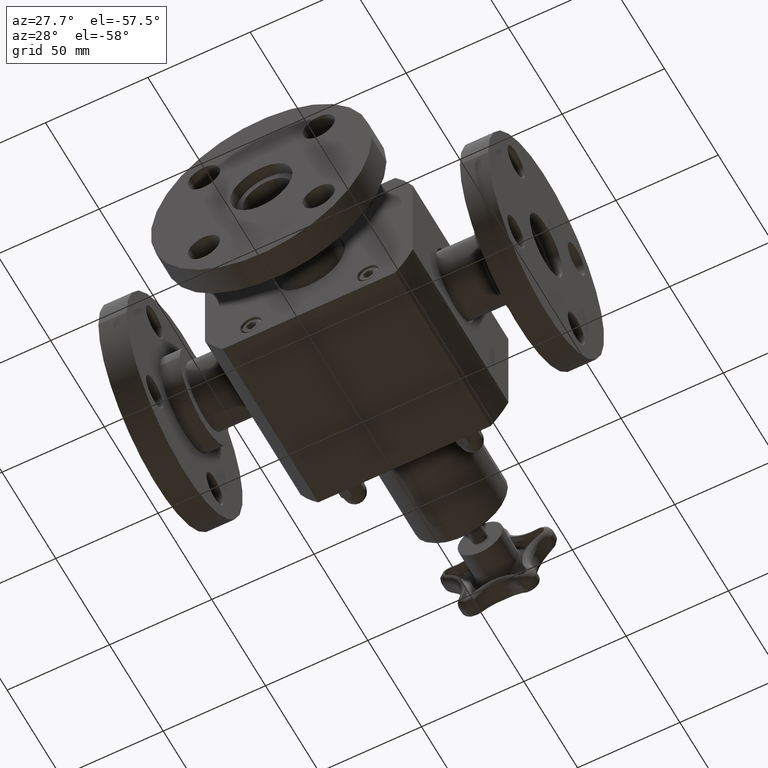
[diagram: clean part render]
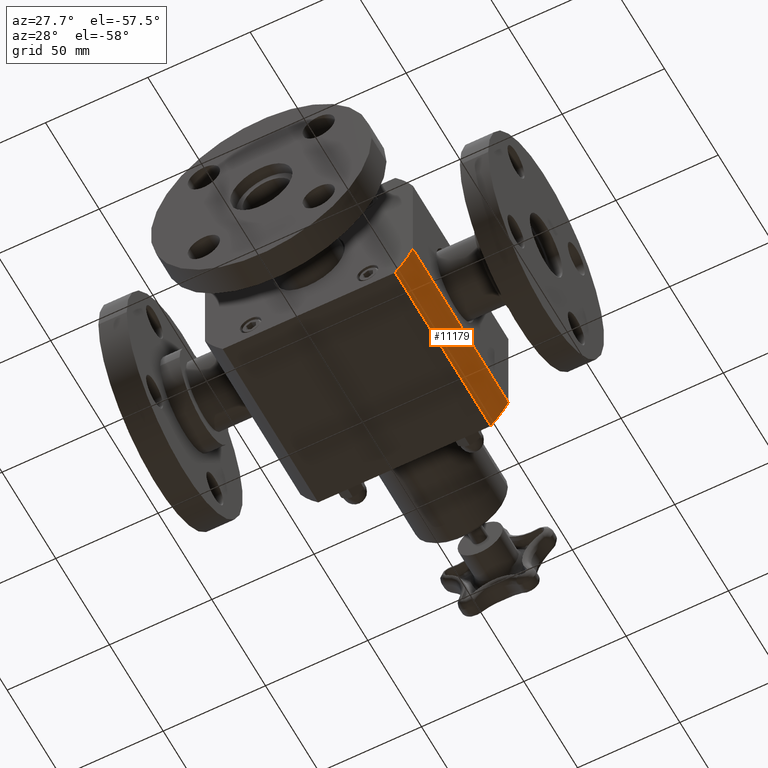
[diagram: same view with one face highlighted and labeled with its STEP entity id]
A machine part, auxiliary view. The second image highlights one B-rep face of the part: STEP entity #11179.
In plain terms, the highlighted cylindrical surface (partial cylindrical patch) has radius 56.8325 mm, axis along (-0, 1, 0).
Its self-contained STEP definition (entity closure, byte-faithful):
#8513=CARTESIAN_POINT('',(1.999999999999997,3.500000000000000,-1.003198011361666));
#8514=VERTEX_POINT('',#8513);
#8521=CARTESIAN_POINT('',(1.660242828624775,3.500000000000000,-1.500000000000000));
#8522=VERTEX_POINT('',#8521);
#8523=CARTESIAN_POINT('',(-2.159895E-015,3.499999999999999,-4.214597E-016));
#8524=DIRECTION('',(0.0,-1.0,0.0));
#8525=DIRECTION('',(1.0,0.0,0.0));
#8526=AXIS2_PLACEMENT_3D('',#8523,#8524,#8525);
#8527=CIRCLE('',#8526,2.237500000000000);
#8528=EDGE_CURVE('',#8522,#8514,#8527,.T.);
#11148=CARTESIAN_POINT('',(-1.019218E-015,-1.748383E-015,-1.210006E-015));
#11149=DIRECTION('',(-4.996004E-016,1.0,2.867440E-016));
#11150=DIRECTION('',(1.0,0.0,0.0));
#11151=AXIS2_PLACEMENT_3D('',#11148,#11149,#11150);
#11152=CYLINDRICAL_SURFACE('',#11151,2.237500000000000);
#11153=CARTESIAN_POINT('',(1.999999999999999,-4.615210E-016,-1.003198011361667));
#11154=VERTEX_POINT('',#11153);
#11155=CARTESIAN_POINT('',(1.999999999999999,-4.615210E-016,-1.003198011361667));
#11156=DIRECTION('',(0.0,1.0,0.0));
#11157=VECTOR('',#11156,3.500000000000001);
#11158=LINE('',#11155,#11157);
#11159=EDGE_CURVE('',#11154,#8514,#11158,.T.);
#11160=ORIENTED_EDGE('',*,*,#11159,.F.);
#11161=CARTESIAN_POINT('',(1.660242828624775,-4.888088E-016,-1.500000000000001));
#11162=VERTEX_POINT('',#11161);
#11163=CARTESIAN_POINT('',(-1.019218E-015,-1.748383E-015,-1.210006E-015));
#11164=DIRECTION('',(0.0,1.0,0.0));
#11165=DIRECTION('',(1.0,0.0,0.0));
#11166=AXIS2_PLACEMENT_3D('',#11163,#11164,#11165);
#11167=CIRCLE('',#11166,2.237500000000000);
#11168=EDGE_CURVE('',#11154,#11162,#11167,.T.);
#11169=ORIENTED_EDGE('',*,*,#11168,.T.);
#11170=CARTESIAN_POINT('',(1.660242828624775,-4.888088E-016,-1.500000000000001));
#11171=DIRECTION('',(0.0,1.0,0.0));
#11172=VECTOR('',#11171,3.500000000000000);
#11173=LINE('',#11170,#11172);
#11174=EDGE_CURVE('',#11162,#8522,#11173,.T.);
#11175=ORIENTED_EDGE('',*,*,#11174,.T.);
#11176=ORIENTED_EDGE('',*,*,#8528,.T.);
#11177=EDGE_LOOP('',(#11160,#11169,#11175,#11176));
#11178=FACE_OUTER_BOUND('',#11177,.T.);
#11179=ADVANCED_FACE('',(#11178),#11152,.T.);